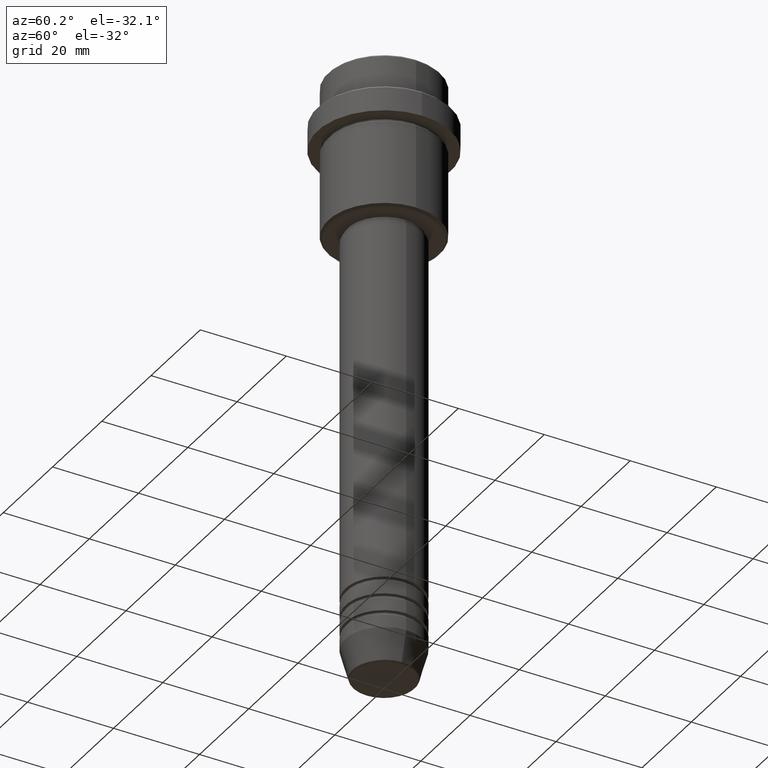
[diagram: clean part render]
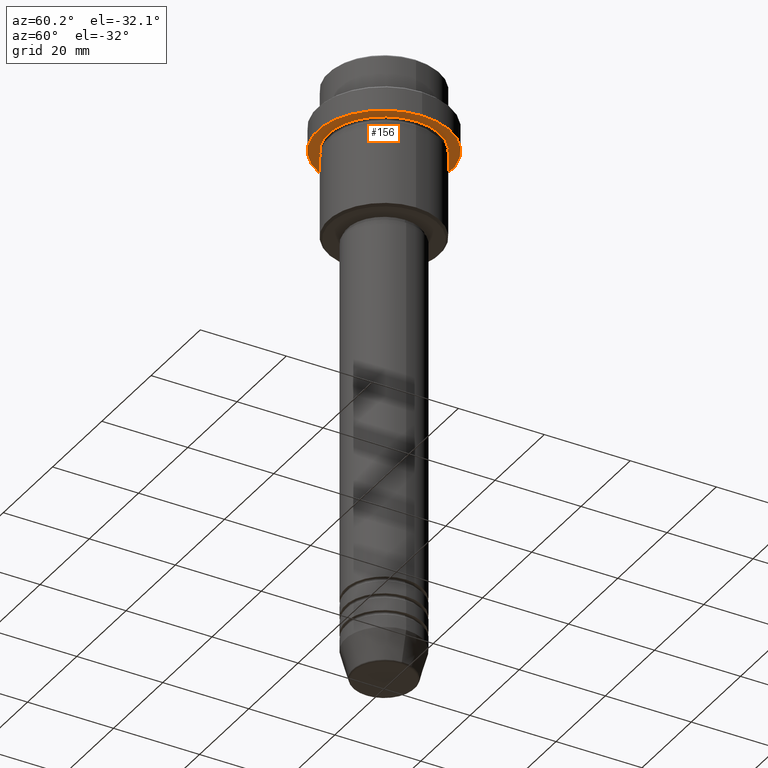
[diagram: same view with one face highlighted and labeled with its STEP entity id]
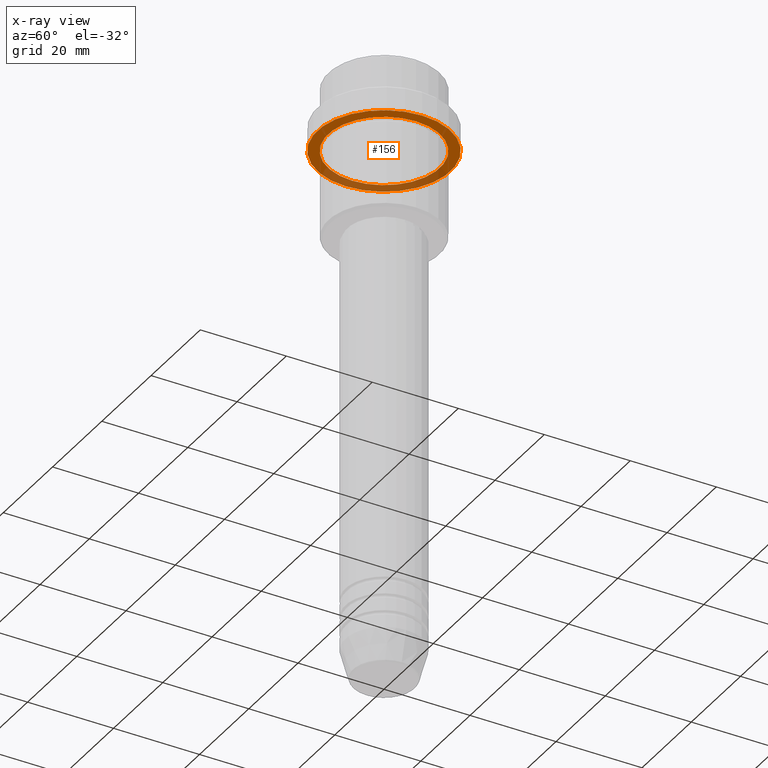
[diagram: x-ray of the same camera — body ghosted, the highlighted face saturated]
A machine part, auxiliary view. The second image highlights one B-rep face of the part: STEP entity #156.
The next image is the same camera in x-ray: the body ghosted, the highlighted face saturated — about 32% of this face is hidden behind the body in this view.
In plain terms, the highlighted planar face has unit normal (0, 0, -1).
Its self-contained STEP definition (entity closure, byte-faithful):
#21 = CARTESIAN_POINT ( 'NONE',  ( 0.000000000000000000, 15.50000000000000000, -15.00000000000000000 ) ) ;
#84 = VERTEX_POINT ( 'NONE', #105 ) ;
#105 = CARTESIAN_POINT ( 'NONE',  ( -12.99999999999999645, 0.000000000000000000, -15.00000000000000000 ) ) ;
#119 = CIRCLE ( 'NONE', #1238, 15.50000000000000000 ) ;
#156 = ADVANCED_FACE ( 'NONE', ( #366, #678 ), #595, .T. ) ;
#227 = AXIS2_PLACEMENT_3D ( 'NONE', #1042, #283, #1026 ) ;
#230 = ORIENTED_EDGE ( 'NONE', *, *, #717, .T. ) ;
#283 = DIRECTION ( 'NONE',  ( -0.000000000000000000, -0.000000000000000000, 1.000000000000000000 ) ) ;
#313 = DIRECTION ( 'NONE',  ( 1.000000000000000000, 0.000000000000000000, 0.000000000000000000 ) ) ;
#324 = VERTEX_POINT ( 'NONE', #1155 ) ;
#366 = FACE_BOUND ( 'NONE', #938, .T. ) ;
#396 = VERTEX_POINT ( 'NONE', #954 ) ;
#419 = EDGE_CURVE ( 'NONE', #396, #1039, #522, .T. ) ;
#502 = AXIS2_PLACEMENT_3D ( 'NONE', #636, #537, #1388 ) ;
#522 = CIRCLE ( 'NONE', #1080, 15.50000000000000000 ) ;
#537 = DIRECTION ( 'NONE',  ( -0.000000000000000000, -0.000000000000000000, 1.000000000000000000 ) ) ;
#544 = EDGE_CURVE ( 'NONE', #1039, #396, #119, .T. ) ;
#595 = PLANE ( 'NONE',  #841 ) ;
#636 = CARTESIAN_POINT ( 'NONE',  ( 0.000000000000000000, 0.000000000000000000, -15.00000000000000000 ) ) ;
#647 = CARTESIAN_POINT ( 'NONE',  ( 0.000000000000000000, 0.000000000000000000, -15.00000000000000000 ) ) ;
#678 = FACE_OUTER_BOUND ( 'NONE', #1079, .T. ) ;
#695 = DIRECTION ( 'NONE',  ( -1.000000000000000000, 0.000000000000000000, -0.000000000000000000 ) ) ;
#712 = CIRCLE ( 'NONE', #227, 12.99999999999999645 ) ;
#717 = EDGE_CURVE ( 'NONE', #324, #84, #712, .T. ) ;
#841 = AXIS2_PLACEMENT_3D ( 'NONE', #21, #1117, #695 ) ;
#938 = EDGE_LOOP ( 'NONE', ( #980, #230 ) ) ;
#939 = EDGE_CURVE ( 'NONE', #84, #324, #1194, .T. ) ;
#954 = CARTESIAN_POINT ( 'NONE',  ( -15.50000000000000000, 1.898202538678397557E-15, -15.00000000000000000 ) ) ;
#959 = DIRECTION ( 'NONE',  ( -0.000000000000000000, -0.000000000000000000, 1.000000000000000000 ) ) ;
#980 = ORIENTED_EDGE ( 'NONE', *, *, #939, .T. ) ;
#1009 = CARTESIAN_POINT ( 'NONE',  ( 0.000000000000000000, 0.000000000000000000, -15.00000000000000000 ) ) ;
#1025 = ORIENTED_EDGE ( 'NONE', *, *, #544, .F. ) ;
#1026 = DIRECTION ( 'NONE',  ( -1.000000000000000000, 0.000000000000000000, 0.000000000000000000 ) ) ;
#1039 = VERTEX_POINT ( 'NONE', #1212 ) ;
#1042 = CARTESIAN_POINT ( 'NONE',  ( 0.000000000000000000, 0.000000000000000000, -15.00000000000000000 ) ) ;
#1079 = EDGE_LOOP ( 'NONE', ( #1025, #1381 ) ) ;
#1080 = AXIS2_PLACEMENT_3D ( 'NONE', #647, #959, #313 ) ;
#1090 = DIRECTION ( 'NONE',  ( 1.000000000000000000, 0.000000000000000000, 0.000000000000000000 ) ) ;
#1117 = DIRECTION ( 'NONE',  ( 0.000000000000000000, 0.000000000000000000, -1.000000000000000000 ) ) ;
#1155 = CARTESIAN_POINT ( 'NONE',  ( 12.99999999999999645, 1.592040838891558701E-15, -15.00000000000000000 ) ) ;
#1194 = CIRCLE ( 'NONE', #502, 12.99999999999999645 ) ;
#1212 = CARTESIAN_POINT ( 'NONE',  ( 15.50000000000000000, 0.000000000000000000, -15.00000000000000000 ) ) ;
#1238 = AXIS2_PLACEMENT_3D ( 'NONE', #1009, #1298, #1090 ) ;
#1298 = DIRECTION ( 'NONE',  ( -0.000000000000000000, -0.000000000000000000, 1.000000000000000000 ) ) ;
#1381 = ORIENTED_EDGE ( 'NONE', *, *, #419, .F. ) ;
#1388 = DIRECTION ( 'NONE',  ( -1.000000000000000000, 0.000000000000000000, 0.000000000000000000 ) ) ;